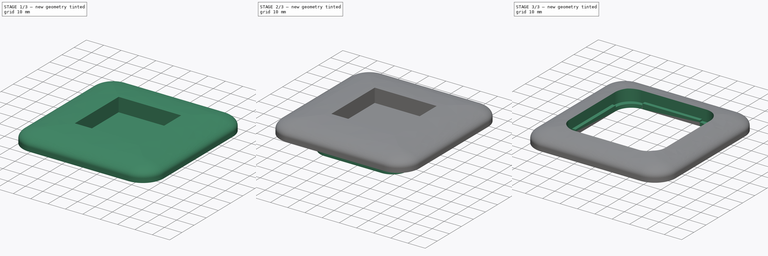
[diagram: build sequence overview — one tinted view per stage of 3, left to right]
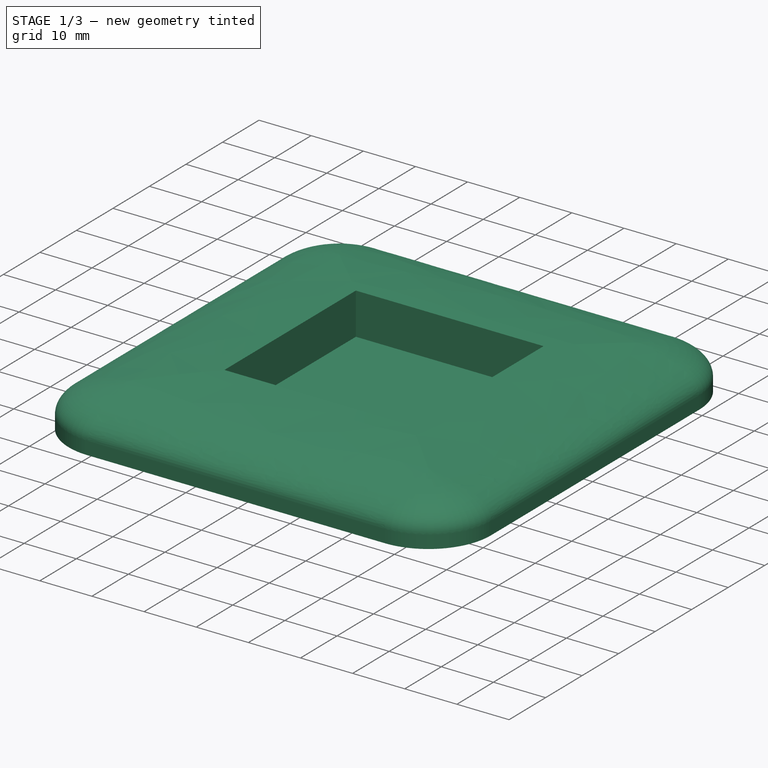
[diagram: stage 1 of 3 — iso view after this stage's code; geometry added in this stage tinted green]
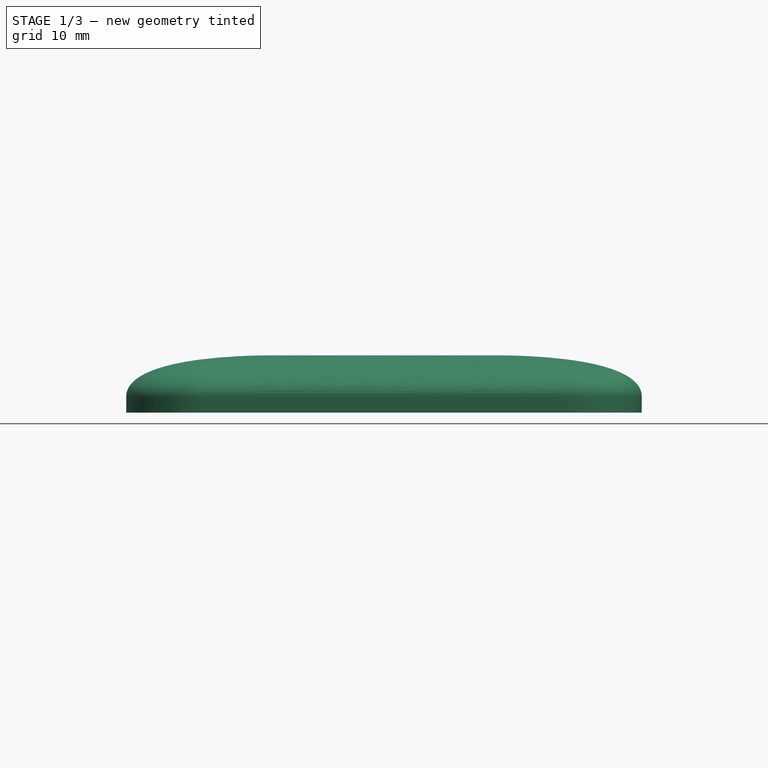
[diagram: stage 1 of 3 — front view after this stage's code; geometry added in this stage tinted green]
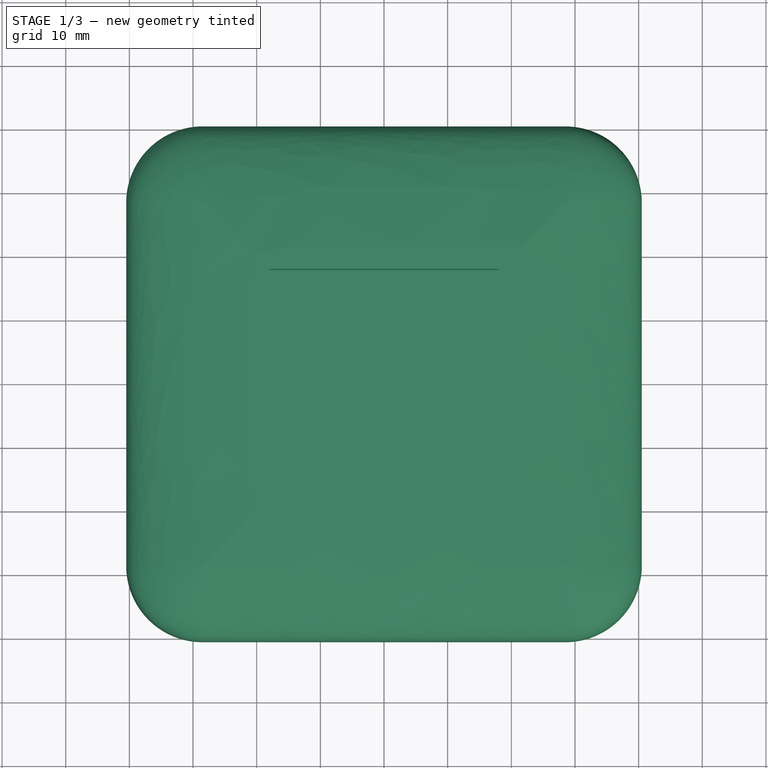
[diagram: stage 1 of 3 — top view after this stage's code; geometry added in this stage tinted green]
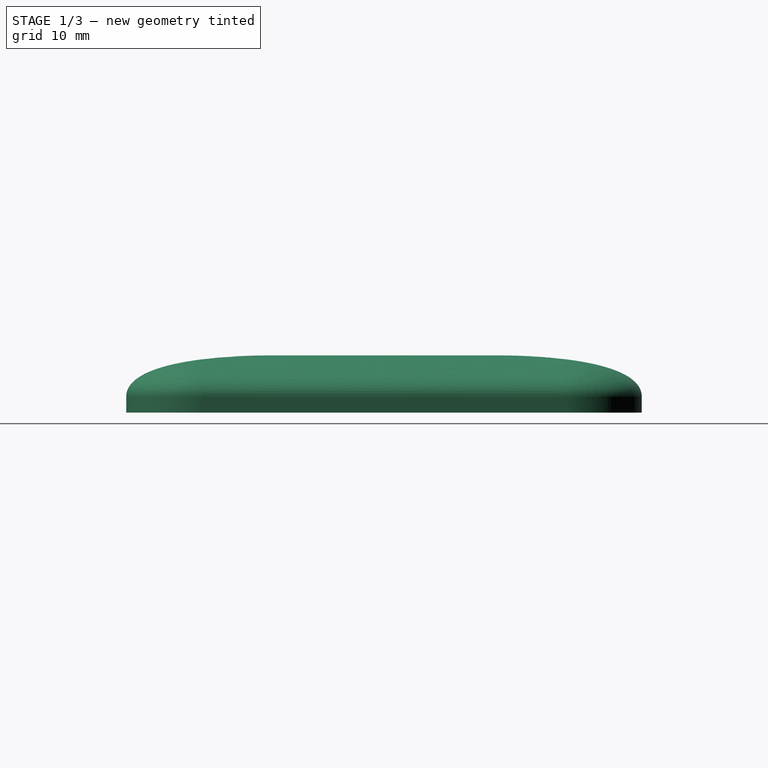
[diagram: stage 1 of 3 — right view after this stage's code; geometry added in this stage tinted green]
FCSTD DOCUMENT  (FreeCAD 0.20R29603 (Git))
Label: switch-plate-experimental
License: All rights reserved
LicenseURL: http://en.wikipedia.org/wiki/All_rights_reserved
objects: Sketcher::SketchObject×5, PartDesign::Pad×3, PartDesign::Body×2, Spreadsheet::Sheet×1, PartDesign::AdditivePipe×1, PartDesign::Boolean×1
note: 16 computed .brp shape members not serialized (recipe doc carries the construction recipe); baked Part::Feature solids carry a one-line shape summary decoded from their .brp

FEATURE [Spreadsheet::Sheet] Spreadsheet  label="Dimensions"
  cells = A1=outer_square; B1(outer_square)==55mm; A2=inner_square; B2(inner_square)==51mm; A3=outer_radius; B3(outer_radius)==9mm; A4=inner_radius; B4(inner_radius)==9mm; A5=frame_height; B5(frame_height)==81mm; A6=frame_width; B6(frame_width)==81mm; A7=frame_radius; B7(frame_radius)==12mm; A8=frame_back_to_inset_back; B8(frame_back_to_inset_back)==2mm; A9=frame_thickness; B9(frame_thickness)==9mm; A10=frame_edge_height; B10(frame_edge_height)==2.5mm; A11=frame_curve_radius; B11(frame_curve_radius)==15mm
FEATURE [Sketcher::SketchObject] Sketch004  label="SweepPath"
  FullyConstrained = true
  MapMode = 5
  Support = -> [XY_Plane002]
  expr: Constraints[10] = <<Dimensions>>.frame_height - 2 * <<Dimensions>>.frame_radius
  expr: Constraints[9] = <<Dimensions>>.frame_width - 2 * <<Dimensions>>.frame_radius
  sketch-geometry (4):
    g0: LineSegment StartX=-28.5 StartY=28.5 StartZ=0 EndX=28.5 EndY=28.5 EndZ=0
    g1: LineSegment StartX=28.5 StartY=28.5 StartZ=0 EndX=28.5 EndY=-28.5 EndZ=0
    g2: LineSegment StartX=28.5 StartY=-28.5 StartZ=0 EndX=-28.5 EndY=-28.5 EndZ=0
    g3: LineSegment StartX=-28.5 StartY=-28.5 StartZ=0 EndX=-28.5 EndY=28.5 EndZ=0
  constraints (11):
    c: Coincident(g0,g1)
    c: Coincident(g1,g2)
    c: Coincident(g2,g3)
    c: Coincident(g3,g0)
    c: Horizontal(g0)
    c: Horizontal(g2)
    c: Vertical(g1)
    c: Vertical(g3)
    c: Symmetric(g1,g0,g-1)
    c: DistanceX(g2,g1) = 57
    c: DistanceY(g2,g0) = 57
FEATURE [Sketcher::SketchObject] Sketch005  label="SweepProfile"
  FullyConstrained = true
  MapMode = 5
  Placement = pos=(0,0,0) rot=(1,0,0;1.5708rad)
  Support = -> [XZ_Plane002]
  expr: Constraints[11] = <<Dimensions>>.frame_width / 2 - <<Dimensions>>.frame_radius
  expr: Constraints[1] = (<<Dimensions>>.frame_width - <<Dimensions>>.inner_square) * 0.75
  expr: Constraints[5] = <<Dimensions>>.frame_edge_height
  expr: Constraints[6] = <<Dimensions>>.frame_thickness
  expr: Constraints[9] = <<Dimensions>>.frame_width / 2
  sketch-geometry (11):
    g0: LineSegment StartX=18 StartY=9 StartZ=0 EndX=18 EndY=0 EndZ=0
    g1: LineSegment StartX=18 StartY=0 StartZ=0 EndX=40.5 EndY=0 EndZ=0
    g2: LineSegment StartX=40.5 StartY=0 StartZ=0 EndX=40.5 EndY=2.5 EndZ=0
    g3: GeomPoint X=28.5 Y=0 Z=0
    g4-g7: Circle x4 (B-spline internal-alignment scaffolding for g8; pole/knot coordinates omitted)
    g8: BSplineCurve PolesCount=4 KnotsCount=2 Degree=3 IsPeriodic=0
    g9: GeomPoint X=18 Y=9 Z=0
    g10: GeomPoint X=40.5 Y=2.5 Z=0
  constraints (25):
    c: Coincident(g1,g0)
    c: DistanceX(g0,g1) = 22.5
    c: Horizontal(g1)
    c: Coincident(g2,g1)
    c: Vertical(g2)
    c: DistanceY(g1,g2) = 2.5
    c: DistanceY(g0,g0) = 9
    c: Vertical(g0)
    c: Horizontal(g0,g-1)
    c: DistanceX(g-1,g1) = 40.5
    c: PointOnObject(g3,g1)
    c: DistanceX(g-1,g3) = 28.5
    c: Weight(g4) = 1
    c: Coincident(g8,g0)
    c: Equal(g4,g5)
    c: Equal(g4,g6)
    c: Equal(g4,g7)
    c: Coincident(g8,g2)
    c: InternalAlignment(g4-g7 -> g8) x4
    c: InternalAlignment(g9,g8)
    c: InternalAlignment(g10,g8)
    c: Vertical(g2,g6)
    c: Horizontal(g5,g0)
    c: DistanceX(g0,g5) = 5
    c: DistanceY(g2,g6) = 6
FEATURE [Sketcher::SketchObject] Sketch  label="SketchEars"
  FullyConstrained = true
  MapMode = 5
  Support = -> [XY_Plane]
  expr: Constraints[38] = <<Dimensions>>.inner_square
  expr: Constraints[39] = <<Dimensions>>.inner_square
  expr: Constraints[40] = <<Dimensions>>.outer_square
  expr: Constraints[41] = <<Dimensions>>.outer_square
  expr: Constraints[44] = <<Dimensions>>.inner_radius
  expr: Constraints[45] = <<Dimensions>>.outer_radius
  sketch-geometry (45):
    g0: ArcOfCircle CenterX=-16.5 CenterY=16.5 CenterZ=0 NormalX=0 NormalY=0 NormalZ=1 AngleXU=0 Radius=9 StartAngle=1.5708 EndAngle=3.14159
    g1: LineSegment StartX=-16.5 StartY=25.5 StartZ=0 EndX=16.5 EndY=25.5 EndZ=0
    g2: ArcOfCircle CenterX=16.5 CenterY=16.5 CenterZ=0 NormalX=0 NormalY=0 NormalZ=1 AngleXU=0 Radius=9 StartAngle=2e-16 EndAngle=1.5708
    g3: LineSegment StartX=25.5 StartY=16.5 StartZ=0 EndX=25.5 EndY=-16.5 EndZ=0
    g4: ArcOfCircle CenterX=16.5 CenterY=-16.5 CenterZ=0 NormalX=0 NormalY=0 NormalZ=1 AngleXU=0 Radius=9 StartAngle=4.71239 EndAngle=6.28319
    g5: LineSegment StartX=16.5 StartY=-25.5 StartZ=0 EndX=-16.5 EndY=-25.5 EndZ=0
    g6: ArcOfCircle CenterX=-16.5 CenterY=-16.5 CenterZ=0 NormalX=0 NormalY=0 NormalZ=1 AngleXU=0 Radius=9 StartAngle=3.14159 EndAngle=4.71239
    g7: LineSegment StartX=-25.5 StartY=-16.5 StartZ=0 EndX=-25.5 EndY=16.5 EndZ=0
    g8: GeomPoint X=-25.5 Y=25.5 Z=0
    g9: GeomPoint X=25.5 Y=-25.5 Z=0
    g10: ArcOfCircle CenterX=-18.5 CenterY=18.5 CenterZ=0 NormalX=0 NormalY=0 NormalZ=1 AngleXU=0 Radius=9 StartAngle=1.5708 EndAngle=3.14159
    g11: LineSegment StartX=-18.5 StartY=27.5 StartZ=0 EndX=18.5 EndY=27.5 EndZ=0
    g12: ArcOfCircle CenterX=18.5 CenterY=18.5 CenterZ=0 NormalX=0 NormalY=0 NormalZ=1 AngleXU=0 Radius=9 StartAngle=0 EndAngle=1.5708
    g13: LineSegment StartX=27.5 StartY=18.5 StartZ=0 EndX=27.5 EndY=-18.5 EndZ=0
    g14: ArcOfCircle CenterX=18.5 CenterY=-18.5 CenterZ=0 NormalX=0 NormalY=0 NormalZ=1 AngleXU=0 Radius=9 StartAngle=4.71239 EndAngle=6.28319
    g15: LineSegment StartX=18.5 StartY=-27.5 StartZ=0 EndX=-18.5 EndY=-27.5 EndZ=0
    g16: ArcOfCircle CenterX=-18.5 CenterY=-18.5 CenterZ=0 NormalX=0 NormalY=0 NormalZ=1 AngleXU=0 Radius=9 StartAngle=3.14159 EndAngle=4.71239
    g17: LineSegment StartX=-27.5 StartY=-18.5 StartZ=0 EndX=-27.5 EndY=18.5 EndZ=0
    g18: GeomPoint X=-27.5 Y=27.5 Z=0
    g19: GeomPoint X=27.5 Y=-27.5 Z=0
    g20: ArcOfCircle CenterX=-18.5 CenterY=18.5 CenterZ=0 NormalX=0 NormalY=0 NormalZ=1 AngleXU=0 Radius=9 StartAngle=1.5708 EndAngle=3.14159
    g21: ArcOfCircle CenterX=18.5 CenterY=18.5 CenterZ=0 NormalX=0 NormalY=0 NormalZ=1 AngleXU=0 Radius=9 StartAngle=1e-16 EndAngle=1.5708
    g22: ArcOfCircle CenterX=18.5 CenterY=-18.5 CenterZ=0 NormalX=0 NormalY=0 NormalZ=1 AngleXU=0 Radius=9 StartAngle=4.71239 EndAngle=6.28319
    g23: ArcOfCircle CenterX=-18.5 CenterY=-18.5 CenterZ=0 NormalX=0 NormalY=0 NormalZ=1 AngleXU=0 Radius=9 StartAngle=3.14159 EndAngle=4.71239
    g24: GeomPoint X=18.5 Y=25.275 Z=0
    g25: LineSegment StartX=-25.5 StartY=16.5 StartZ=0 EndX=-25.5 EndY=-16.5 EndZ=0
    g26: LineSegment StartX=-16.5 StartY=-25.5 StartZ=0 EndX=16.5 EndY=-25.5 EndZ=0
    g27: LineSegment StartX=25.5 StartY=-16.5 StartZ=0 EndX=25.5 EndY=16.5 EndZ=0
    g28: LineSegment StartX=-16.5 StartY=25.5 StartZ=0 EndX=16.5 EndY=25.5 EndZ=0
    g29: LineSegment StartX=16.5 StartY=25.5 StartZ=0 EndX=16.5 EndY=27.5 EndZ=0
    g30: LineSegment StartX=16.5 StartY=27.5 StartZ=0 EndX=18.5 EndY=27.5 EndZ=0
    g31: LineSegment StartX=25.5 StartY=16.5 StartZ=0 EndX=27.5 EndY=16.5 EndZ=0
    g32: LineSegment StartX=25.5 StartY=-16.5 StartZ=0 EndX=27.5 EndY=-16.5 EndZ=0
    g33: LineSegment StartX=16.5 StartY=-25.5 StartZ=0 EndX=16.5 EndY=-27.5 EndZ=0
    g34: LineSegment StartX=16.5 StartY=-27.5 StartZ=0 EndX=18.5 EndY=-27.5 EndZ=0
    g35: LineSegment StartX=27.5 StartY=-18.5 StartZ=0 EndX=27.5 EndY=-16.5 EndZ=0
    g36: LineSegment StartX=-16.5 StartY=-25.5 StartZ=0 EndX=-16.5 EndY=-27.5 EndZ=0
    g37: LineSegment StartX=-16.5 StartY=-27.5 StartZ=0 EndX=-18.5 EndY=-27.5 EndZ=0
    g38: LineSegment StartX=-25.5 StartY=-16.5 StartZ=0 EndX=-27.5 EndY=-16.5 EndZ=0
    g39: LineSegment StartX=-27.5 StartY=-18.5 StartZ=0 EndX=-27.5 EndY=-16.5 EndZ=0
    g40: LineSegment StartX=-25.5 StartY=16.5 StartZ=0 EndX=-27.5 EndY=16.5 EndZ=0
    g41: LineSegment StartX=-27.5 StartY=16.5 StartZ=0 EndX=-27.5 EndY=18.5 EndZ=0
    g42: LineSegment StartX=-16.5 StartY=25.5 StartZ=0 EndX=-16.5 EndY=27.5 EndZ=0
    g43: LineSegment StartX=-16.5 StartY=27.5 StartZ=0 EndX=-18.5 EndY=27.5 EndZ=0
    g44: LineSegment StartX=27.5 StartY=16.5 StartZ=0 EndX=27.5 EndY=18.5 EndZ=0
  constraints (109):
    c: Tangent(g0,g1) = 1.5708
    c: Tangent(g1,g2) = 1.5708
    c: Tangent(g2,g3) = 1.5708
    c: Tangent(g3,g4) = 1.5708
    c: Tangent(g4,g5) = 1.5708
    c: Tangent(g5,g6) = 1.5708
    c: Tangent(g6,g7) = 1.5708
    c: Tangent(g7,g0) = 1.5708
    c: Horizontal(g1)
    c: Horizontal(g5)
    c: Vertical(g3)
    c: Vertical(g7)
    c: Equal(g0,g2)
    c: Equal(g2,g4)
    c: Equal(g4,g6)
    c: PointOnObject(g8,g1)
    c: PointOnObject(g8,g7)
    c: PointOnObject(g9,g3)
    c: PointOnObject(g9,g5)
    c: Tangent(g10,g11) = 1.5708
    c: Tangent(g11,g12) = 1.5708
    c: Tangent(g12,g13) = 1.5708
    c: Tangent(g13,g14) = 1.5708
    c: Tangent(g14,g15) = 1.5708
    c: Tangent(g15,g16) = 1.5708
    c: Tangent(g16,g17) = 1.5708
    c: Tangent(g17,g10) = 1.5708
    c: Horizontal(g11)
    c: Horizontal(g15)
    c: Vertical(g13)
    c: Vertical(g17)
    c: Equal(g10,g12)
    c: Equal(g12,g14)
    c: Equal(g14,g16)
    c: PointOnObject(g18,g11)
    c: PointOnObject(g18,g17)
    c: PointOnObject(g19,g13)
    c: PointOnObject(g19,g15)
    c: DistanceY(g5,g0) = 51
    c: DistanceX(g6,g3) = 51
    c: DistanceY(g15,g10) = 55
    c: DistanceX(g16,g13) = 55
    c: Symmetric(g12,g16,g-1)
    c: Symmetric(g2,g6,g-1)
    c: Radius(g2) = 9
    c: Radius(g12) = 9
    c: Coincident(g20,g10)
    c: Horizontal(g20,g10)
    c: Horizontal(g20,g10)
    c: Vertical(g20,g10)
    c: Coincident(g21,g12)
    c: Coincident(g21,g12)
    c: Vertical(g21,g11)
    c: Coincident(g22,g14)
    c: Coincident(g22,g13)
    c: Vertical(g22,g14)
    c: Coincident(g23,g16)
    c: Coincident(g23,g16)
    c: Vertical(g23,g15)
    c: PointOnObject(g24,g2)
    c: Vertical(g24,g21)
    c: Coincident(g25,g6)
    c: Coincident(g4,g26)
    c: Coincident(g27,g2)
    c: Coincident(g29,g1)
    c: PointOnObject(g29,g11)
    c: Vertical(g29)
    c: Coincident(g28,g29)
    c: Coincident(g30,g29)
    c: Coincident(g30,g21)
    c: Coincident(g31,g27)
    c: PointOnObject(g31,g13)
    c: Horizontal(g31)
    c: PointOnObject(g32,g13)
    c: Horizontal(g32)
    c: Coincident(g33,g26)
    c: PointOnObject(g33,g15)
    c: Vertical(g33)
    c: Coincident(g34,g33)
    c: Coincident(g34,g22)
    c: Coincident(g35,g22)
    c: Coincident(g35,g32)
    c: PointOnObject(g36,g15)
    c: Vertical(g36)
    c: Coincident(g37,g36)
    c: Coincident(g37,g23)
    c: Coincident(g38,g25)
    c: PointOnObject(g38,g17)
    c: Horizontal(g38)
    c: Coincident(g39,g23)
    c: Coincident(g39,g38)
    c: PointOnObject(g40,g17)
    c: Horizontal(g40)
    c: Coincident(g41,g40)
    c: Coincident(g41,g20)
    c: PointOnObject(g42,g11)
    c: Vertical(g42)
    c: Coincident(g43,g42)
    c: Coincident(g43,g20)
    c: Coincident(g28,g42)
    c: Coincident(g28,g0)
    c: Coincident(g40,g25)
    c: Coincident(g0,g25)
    c: Coincident(g36,g5)
    c: Coincident(g36,g26)
    c: Coincident(g32,g3)
    c: Coincident(g32,g27)
    c: Coincident(g44,g31)
    c: Coincident(g44,g21)
FEATURE [PartDesign::Pad] Pad  label="PadEars"
  Direction = (0,0,1)
  Length = 1
  Length2 = 10
  Profile = -> Sketch
  ReferenceAxis = -> Sketch [N_Axis]
  Type = 0
FEATURE [PartDesign::Body] Body  label="Cutout"
  Group = -> [Sketch,Pad,Sketch001,Pad001,Sketch002,Pad002]
  Origin = -> Origin
  Placement = pos=(0,0,2) rot=(0,0,1;0rad)
  Tip = -> Pad002
  expr: .Placement.Base.z = <<Dimensions>>.frame_back_to_inset_back
FEATURE [PartDesign::AdditivePipe] AdditivePipe
  AuxilleryCurvelinear = true
  AuxillerySpineTangent = false
  Binormal = (0,0,0)
  Mode = 0
  Placement = pos=(0,0,0) rot=(1,0,0;1.5708rad)
  Profile = -> Sketch005 [Edge4]
  Spine = -> Sketch004
  SpineTangent = false
  Transformation = 0
  Transition = 2
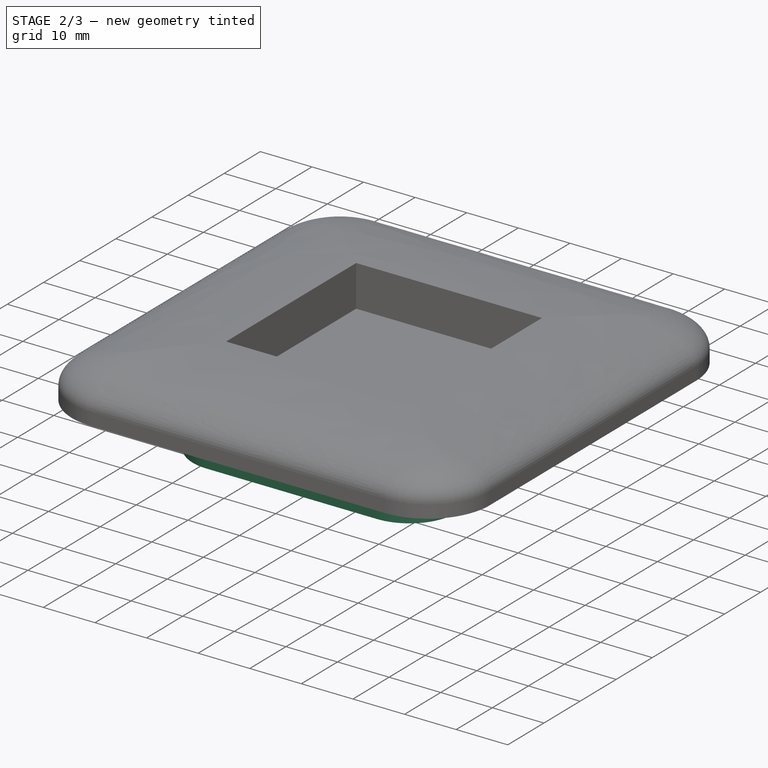
[diagram: stage 2 of 3 — iso view after this stage's code; geometry added in this stage tinted green]
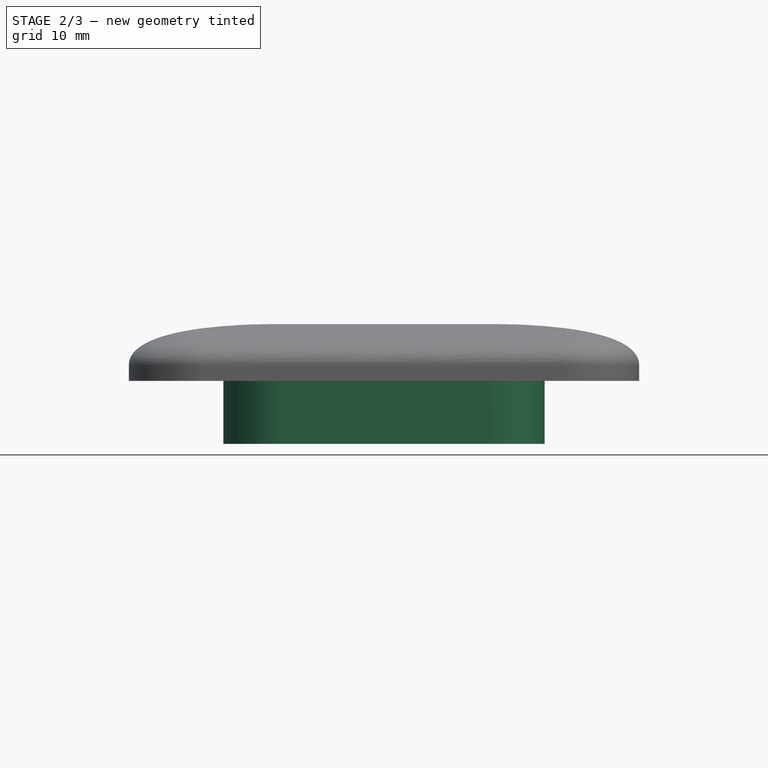
[diagram: stage 2 of 3 — front view after this stage's code; geometry added in this stage tinted green]
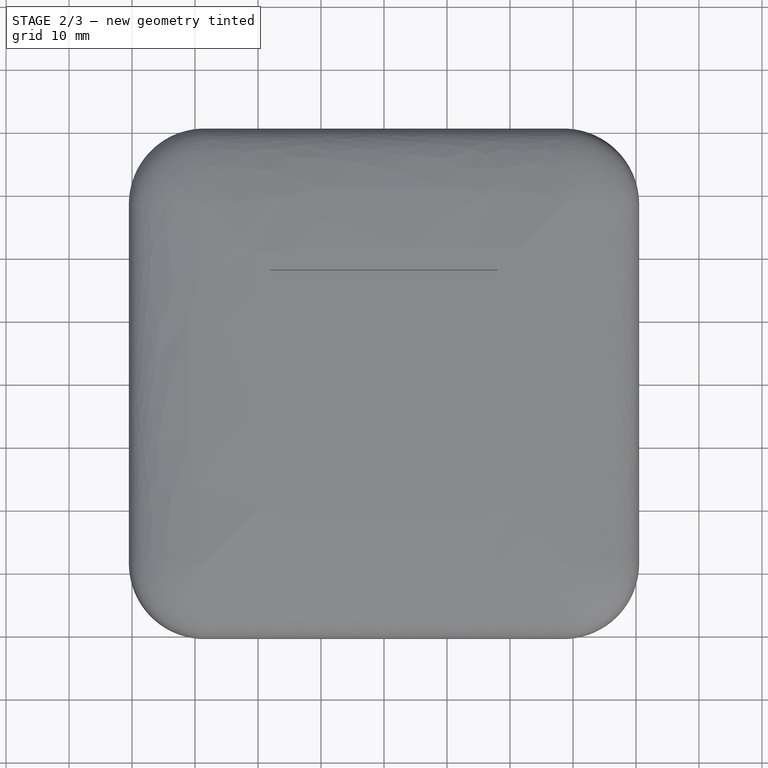
[diagram: stage 2 of 3 — top view after this stage's code; geometry added in this stage tinted green]
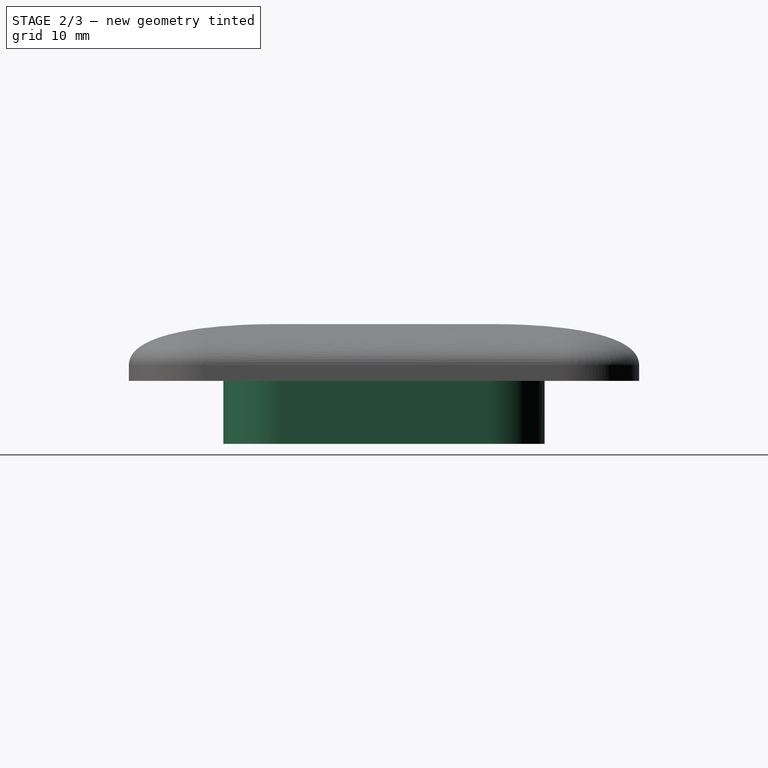
[diagram: stage 2 of 3 — right view after this stage's code; geometry added in this stage tinted green]
FEATURE [Sketcher::SketchObject] Sketch001  label="SketchInnerSquare"
  FullyConstrained = true
  MapMode = 5
  Placement = pos=(0,0,0) rot=(1,0,0;3.14159rad)
  Support = -> [Pad]
  expr: Constraints[19] = <<Dimensions>>.inner_radius
  expr: Constraints[21] = <<Dimensions>>.inner_square
  expr: Constraints[22] = <<Dimensions>>.inner_square
  sketch-geometry (10):
    g0: ArcOfCircle CenterX=-16.5 CenterY=16.5 CenterZ=0 NormalX=0 NormalY=0 NormalZ=1 AngleXU=0 Radius=9 StartAngle=1.5708 EndAngle=3.14159
    g1: LineSegment StartX=-16.5 StartY=25.5 StartZ=0 EndX=16.5 EndY=25.5 EndZ=0
    g2: ArcOfCircle CenterX=16.5 CenterY=16.5 CenterZ=0 NormalX=0 NormalY=0 NormalZ=1 AngleXU=0 Radius=9 StartAngle=1e-16 EndAngle=1.5708
    g3: LineSegment StartX=25.5 StartY=16.5 StartZ=0 EndX=25.5 EndY=-16.5 EndZ=0
    g4: ArcOfCircle CenterX=16.5 CenterY=-16.5 CenterZ=0 NormalX=0 NormalY=0 NormalZ=1 AngleXU=0 Radius=9 StartAngle=4.71239 EndAngle=6.28319
    g5: LineSegment StartX=16.5 StartY=-25.5 StartZ=0 EndX=-16.5 EndY=-25.5 EndZ=0
    g6: ArcOfCircle CenterX=-16.5 CenterY=-16.5 CenterZ=0 NormalX=0 NormalY=0 NormalZ=1 AngleXU=0 Radius=9 StartAngle=3.14159 EndAngle=4.71239
    g7: LineSegment StartX=-25.5 StartY=-16.5 StartZ=0 EndX=-25.5 EndY=16.5 EndZ=0
    g8: GeomPoint X=-25.5 Y=25.5 Z=0
    g9: GeomPoint X=25.5 Y=-25.5 Z=0
  constraints (23):
    c: Tangent(g0,g1) = 1.5708
    c: Tangent(g1,g2) = 1.5708
    c: Tangent(g2,g3) = 1.5708
    c: Tangent(g3,g4) = 1.5708
    c: Tangent(g4,g5) = 1.5708
    c: Tangent(g5,g6) = 1.5708
    c: Tangent(g6,g7) = 1.5708
    c: Tangent(g7,g0) = 1.5708
    c: Horizontal(g1)
    c: Horizontal(g5)
    c: Vertical(g3)
    c: Vertical(g7)
    c: Equal(g0,g2)
    c: Equal(g2,g4)
    c: Equal(g4,g6)
    c: PointOnObject(g8,g1)
    c: PointOnObject(g8,g7)
    c: PointOnObject(g9,g3)
    c: PointOnObject(g9,g5)
    c: Radius(g2) = 9
    c: Symmetric(g2,g6,g-1)
    c: DistanceX(g6,g3) = 51
    c: DistanceY(g4,g1) = 51
FEATURE [PartDesign::Pad] Pad001  label="PadInnerSquare"
  BaseFeature = -> Pad
  Direction = (0,0,-1)
  Length = 10
  Length2 = 10
  Profile = -> Sketch001
  ReferenceAxis = -> Sketch001 [N_Axis]
  Type = 0
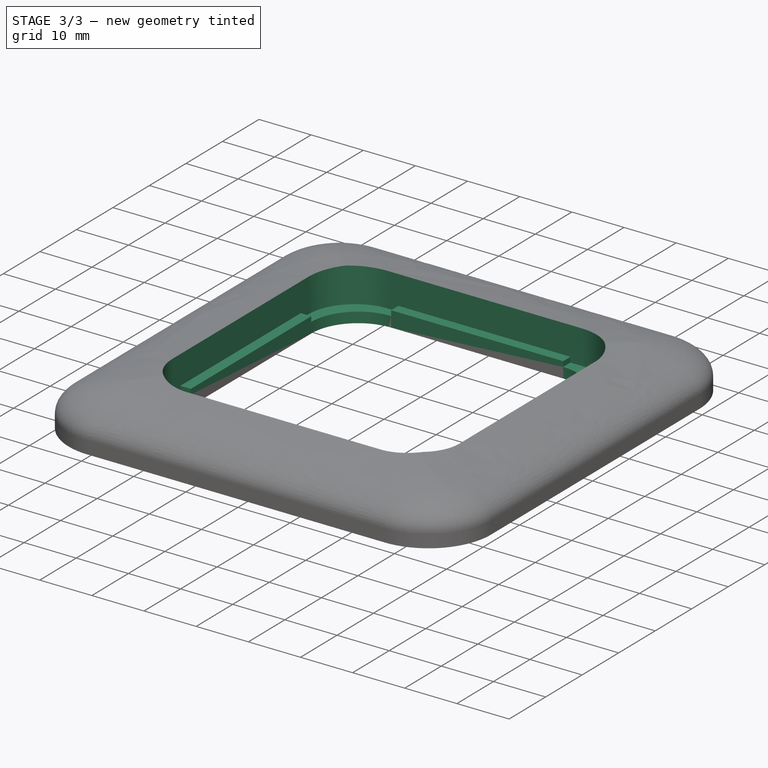
[diagram: stage 3 of 3 — iso view after this stage's code; geometry added in this stage tinted green]
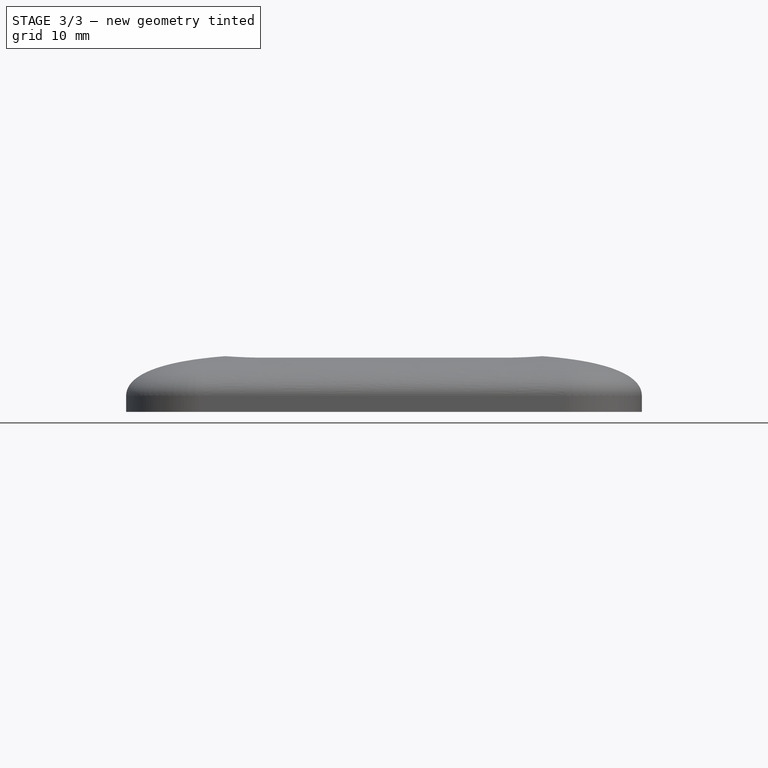
[diagram: stage 3 of 3 — front view after this stage's code; geometry added in this stage tinted green]
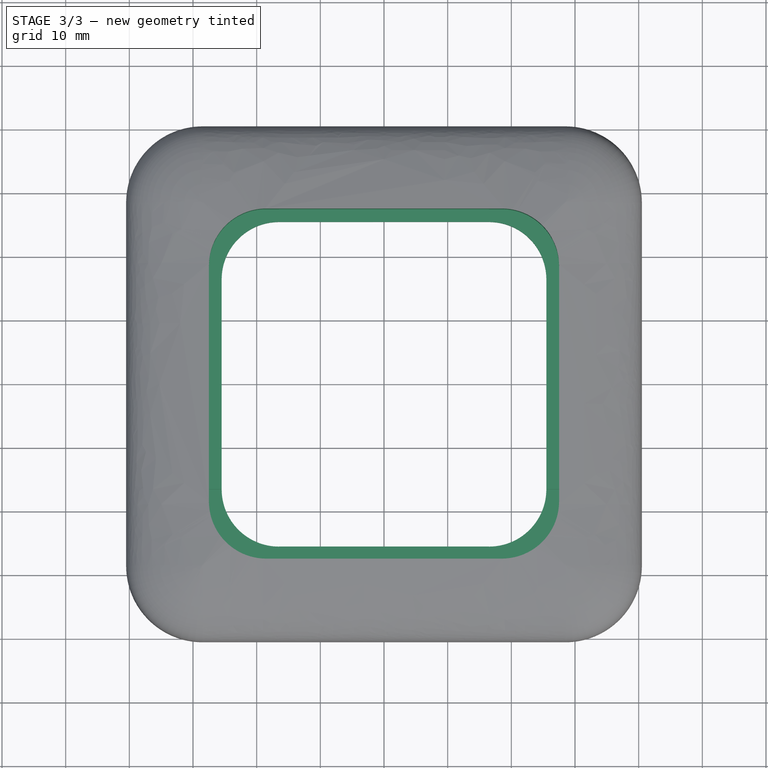
[diagram: stage 3 of 3 — top view after this stage's code; geometry added in this stage tinted green]
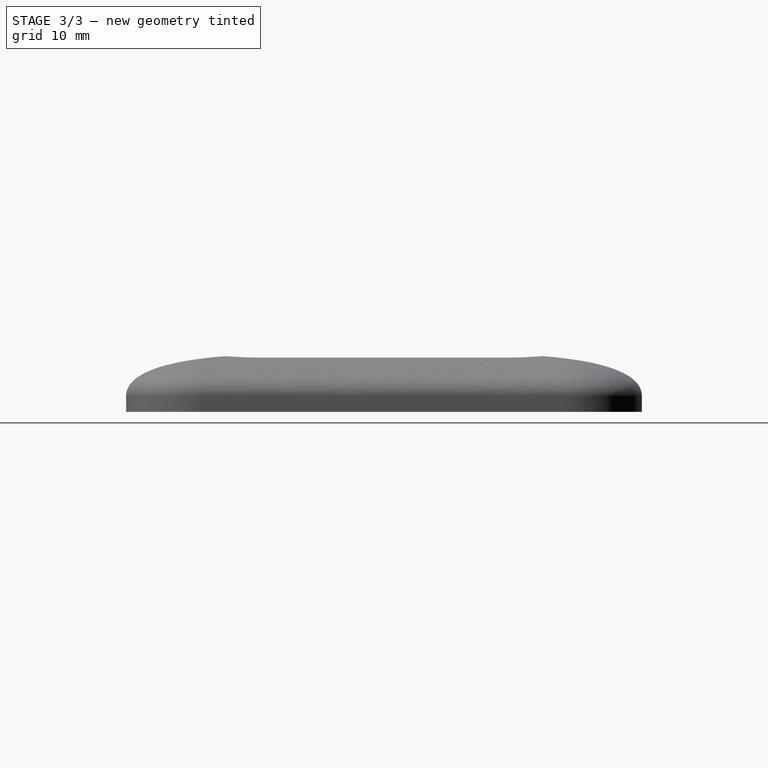
[diagram: stage 3 of 3 — right view after this stage's code; geometry added in this stage tinted green]
FEATURE [Sketcher::SketchObject] Sketch002  label="SketchOuterSquare"
  FullyConstrained = true
  MapMode = 5
  Placement = pos=(0,0,1) rot=(0,0,1;0rad)
  Support = -> [Pad001]
  expr: Constraints[20] = <<Dimensions>>.outer_radius
  expr: Constraints[21] = <<Dimensions>>.outer_square
  expr: Constraints[22] = <<Dimensions>>.outer_square
  sketch-geometry (10):
    g0: ArcOfCircle CenterX=-18.5 CenterY=18.5 CenterZ=0 NormalX=0 NormalY=0 NormalZ=1 AngleXU=0 Radius=9 StartAngle=1.5708 EndAngle=3.14159
    g1: LineSegment StartX=-18.5 StartY=27.5 StartZ=0 EndX=18.5 EndY=27.5 EndZ=0
    g2: ArcOfCircle CenterX=18.5 CenterY=18.5 CenterZ=0 NormalX=0 NormalY=0 NormalZ=1 AngleXU=0 Radius=9 StartAngle=0 EndAngle=1.5708
    g3: LineSegment StartX=27.5 StartY=18.5 StartZ=0 EndX=27.5 EndY=-18.5 EndZ=0
    g4: ArcOfCircle CenterX=18.5 CenterY=-18.5 CenterZ=0 NormalX=0 NormalY=0 NormalZ=1 AngleXU=0 Radius=9 StartAngle=4.71239 EndAngle=6.28319
    g5: LineSegment StartX=18.5 StartY=-27.5 StartZ=0 EndX=-18.5 EndY=-27.5 EndZ=0
    g6: ArcOfCircle CenterX=-18.5 CenterY=-18.5 CenterZ=0 NormalX=0 NormalY=0 NormalZ=1 AngleXU=0 Radius=9 StartAngle=3.14159 EndAngle=4.71239
    g7: LineSegment StartX=-27.5 StartY=-18.5 StartZ=0 EndX=-27.5 EndY=18.5 EndZ=0
    g8: GeomPoint X=-27.5 Y=27.5 Z=0
    g9: GeomPoint X=27.5 Y=-27.5 Z=0
  constraints (23):
    c: Tangent(g0,g1) = 1.5708
    c: Tangent(g1,g2) = 1.5708
    c: Tangent(g2,g3) = 1.5708
    c: Tangent(g3,g4) = 1.5708
    c: Tangent(g4,g5) = 1.5708
    c: Tangent(g5,g6) = 1.5708
    c: Tangent(g6,g7) = 1.5708
    c: Tangent(g7,g0) = 1.5708
    c: Horizontal(g1)
    c: Horizontal(g5)
    c: Vertical(g3)
    c: Vertical(g7)
    c: Equal(g0,g2)
    c: Equal(g2,g4)
    c: Equal(g4,g6)
    c: PointOnObject(g8,g1)
    c: PointOnObject(g8,g7)
    c: PointOnObject(g9,g3)
    c: PointOnObject(g9,g5)
    c: Symmetric(g2,g6,g-1)
    c: Radius(g2) = 9
    c: DistanceX(g6,g3) = 55
    c: DistanceY(g5,g0) = 55
FEATURE [PartDesign::Pad] Pad002  label="PadOuterSquare"
  BaseFeature = -> Pad001
  Direction = (0,0,1)
  Length = 10
  Length2 = 10
  Profile = -> Sketch002
  ReferenceAxis = -> Sketch002 [N_Axis]
  Type = 0
FEATURE [PartDesign::Boolean] Boolean
  BaseFeature = -> AdditivePipe
  Group = -> [Body]
  Type = 1
FEATURE [PartDesign::Body] Body002  label="Frame"
  Group = -> [Sketch004,Sketch005,AdditivePipe,Boolean]
  Origin = -> Origin002
  Tip = -> Boolean
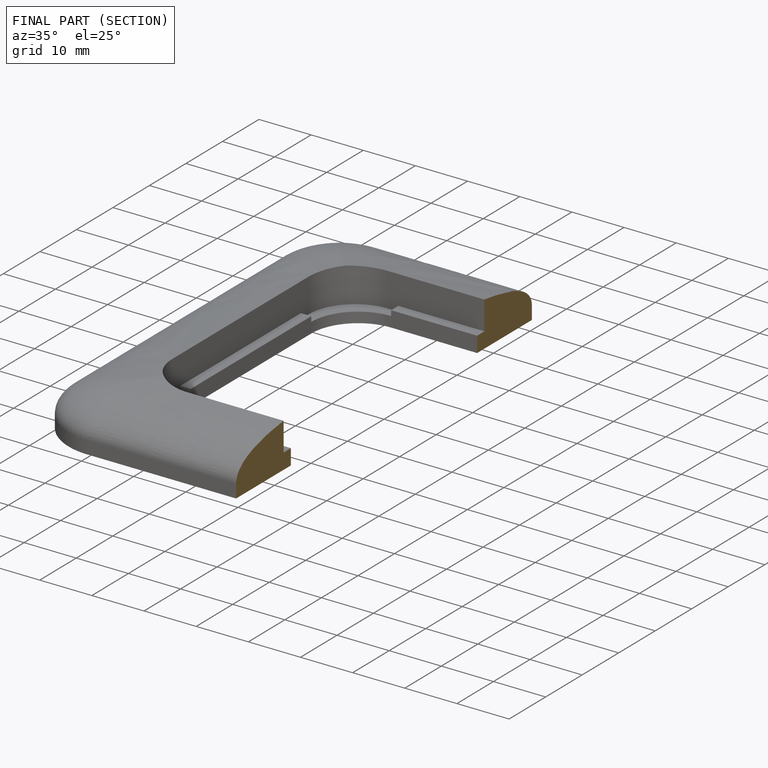
[diagram: finished part — half-section view (interior)]
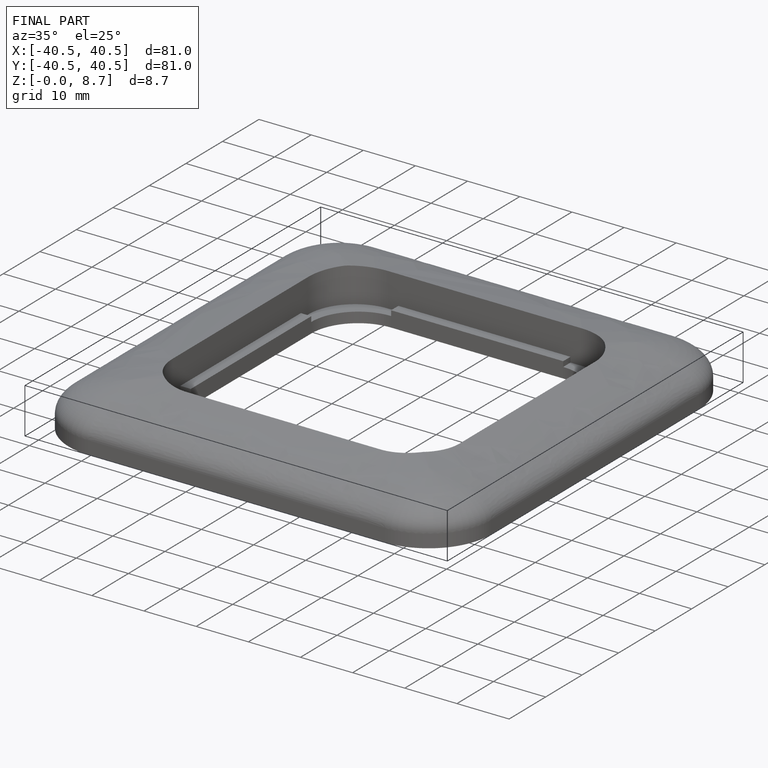
[diagram: finished part — iso view with bounding-box wireframe]
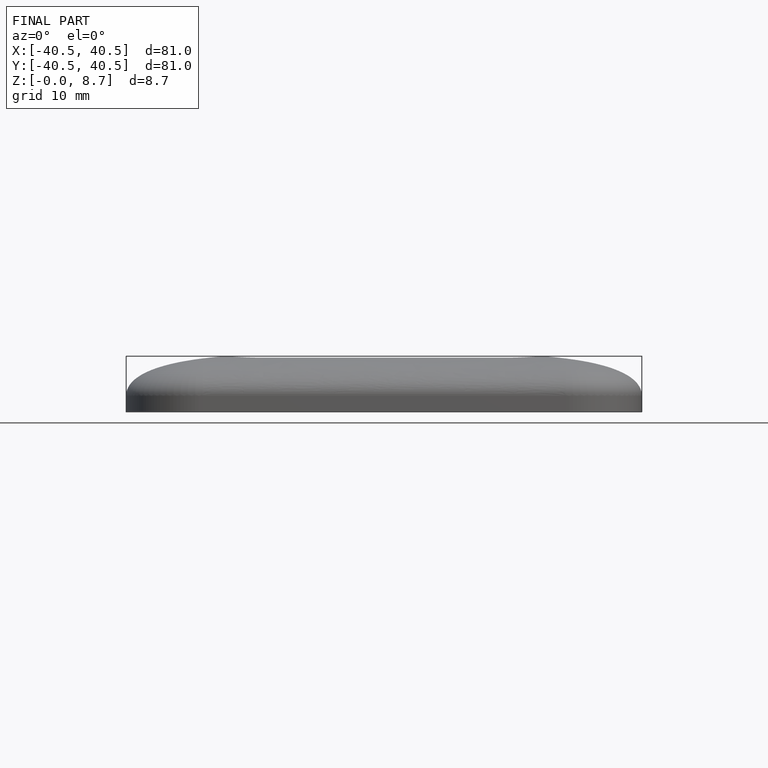
[diagram: finished part — front view with bounding-box wireframe]
